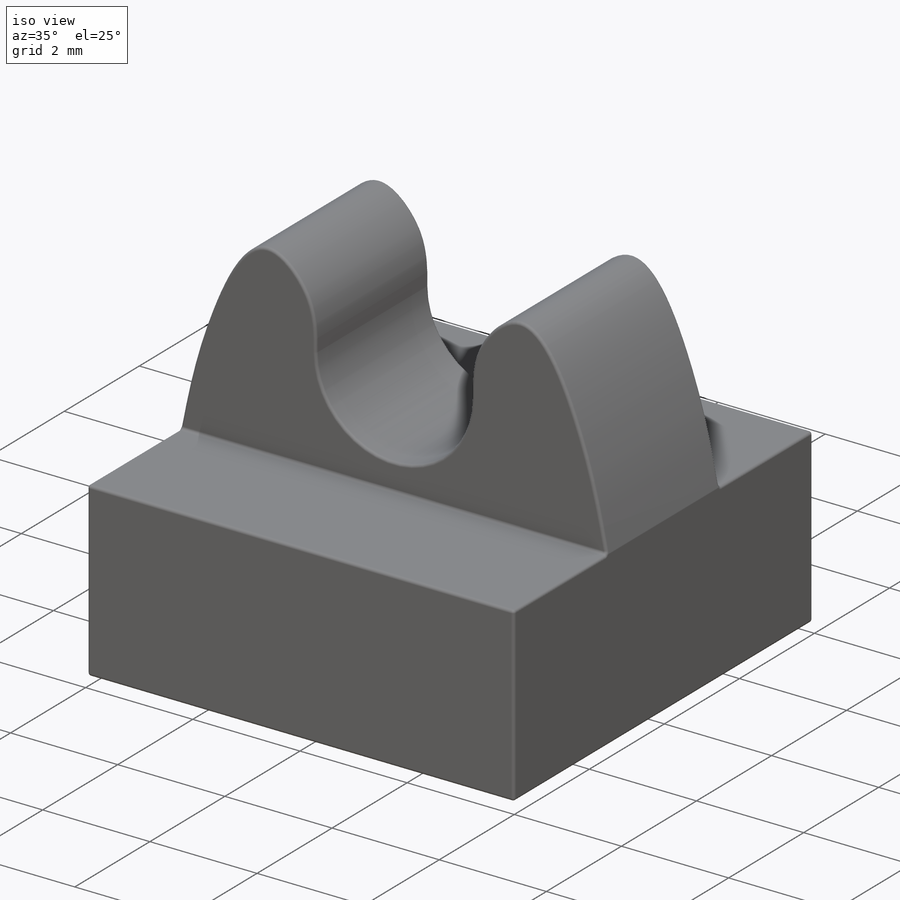
[diagram: iso view]
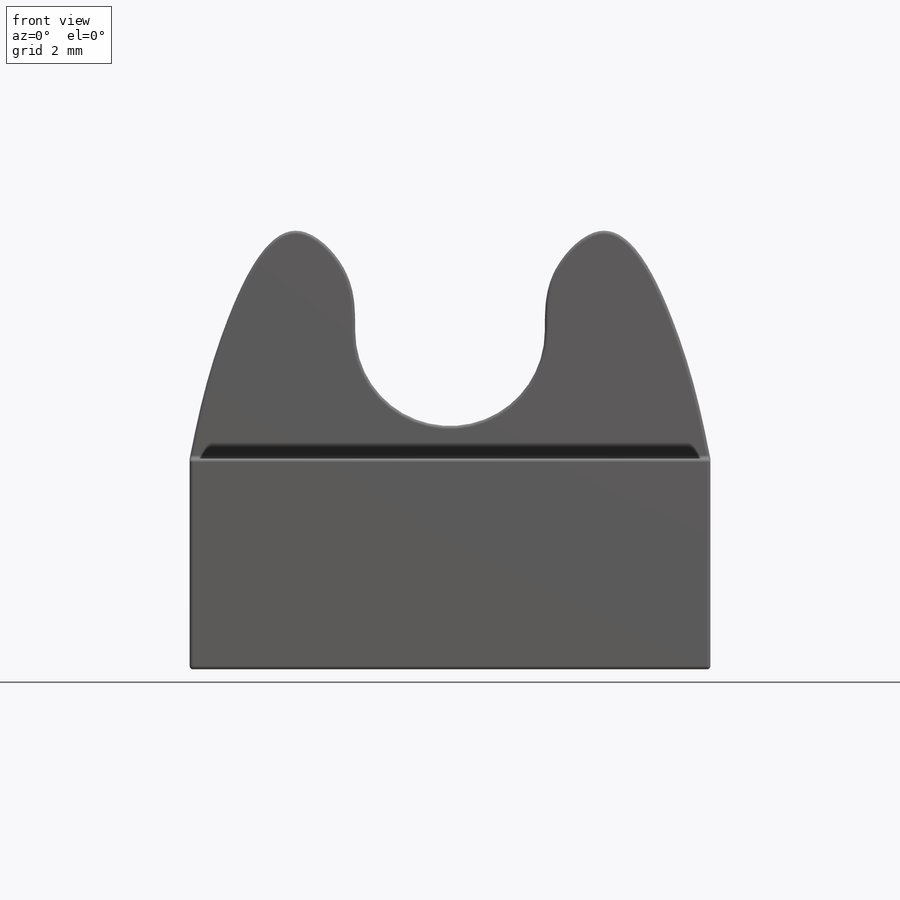
[diagram: front view]
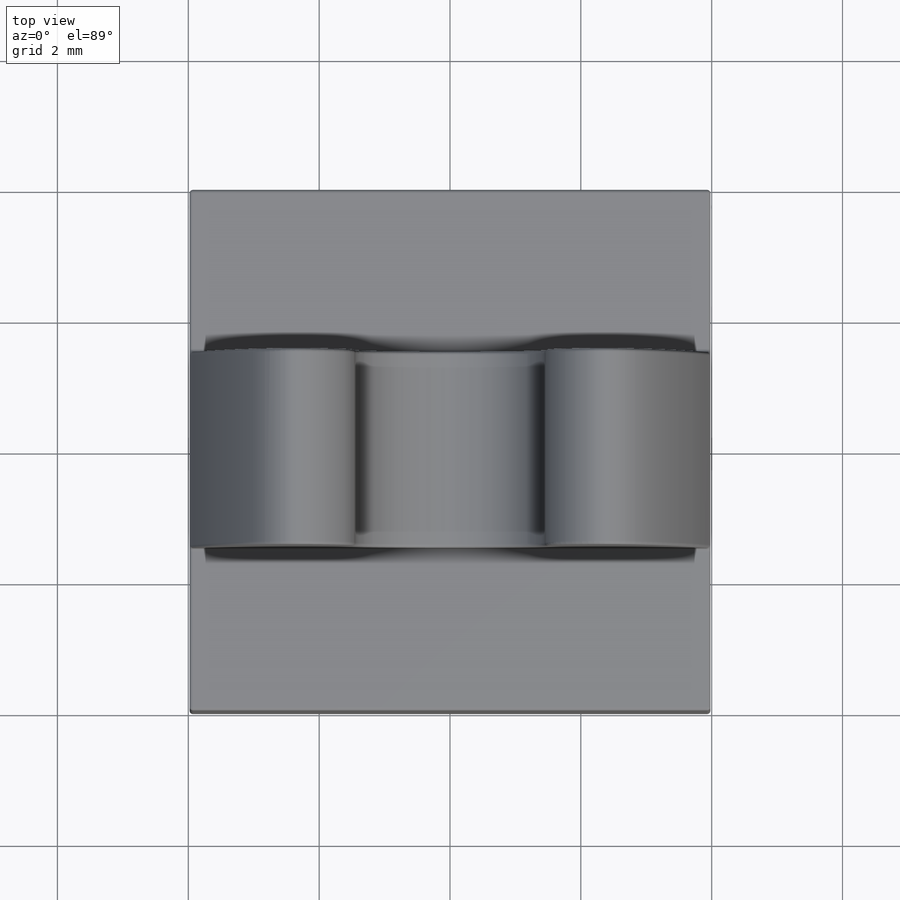
[diagram: top view]
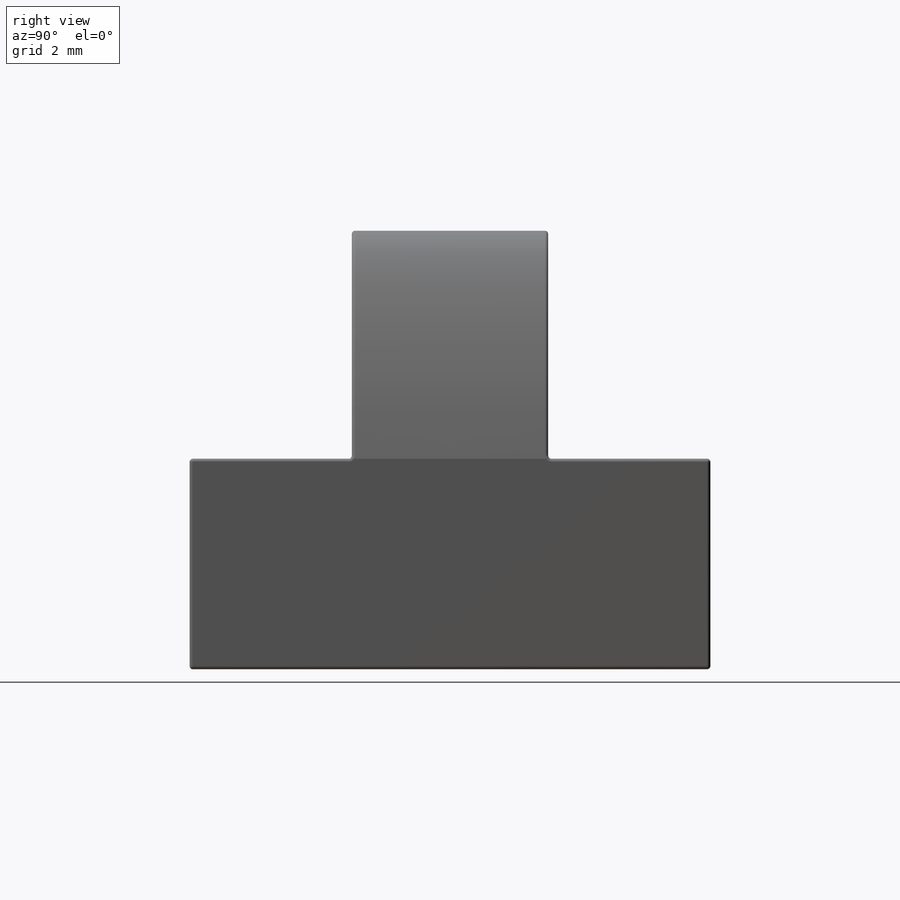
[diagram: right view]
SOLIDWORKS PART (.sldprt)
format: sldprt  version: not decoded by parser v0  size: 357,888 bytes
history: native  units: mm
features: sketch x4, extrude x2, material x1, shell x1, cut_extrude x1, fillet x1 (+14 scaffold rows collapsed)
feature tree (24):
  scaffold x14  (default folders/planes/origin — collapsed)
  material  "Grey"
  sketch  "Sketch1"  dims[D1=7.96mm]
  extrude  "Extrude1"  Depth=3.22mm
  shell  "Shell1"  Thickness=1.55mm
  sketch  "Sketch3"
  cut_extrude  "Extrude3"  Depth=0.14mm
  sketch  "Sketch4"  dims[D1=2.9mm D2=1.95mm D3=2.14mm D4=3.48mm D5=~1.688905mm D6=~0.58598mm D7=~2.81012mm D8=~0.717776mm]
  sketch  "Sketch5"
  extrude  "Extrude5"  Depth=1.5mm
  fillet  "Fillet1"  Radius=0.05mm
decode coverage: 7 of 9 modeling features carry decoded parameters
note: ~ marks probable driven/reference dimensions
note: suppression state not decoded; provenance and decode notes live in map.json
